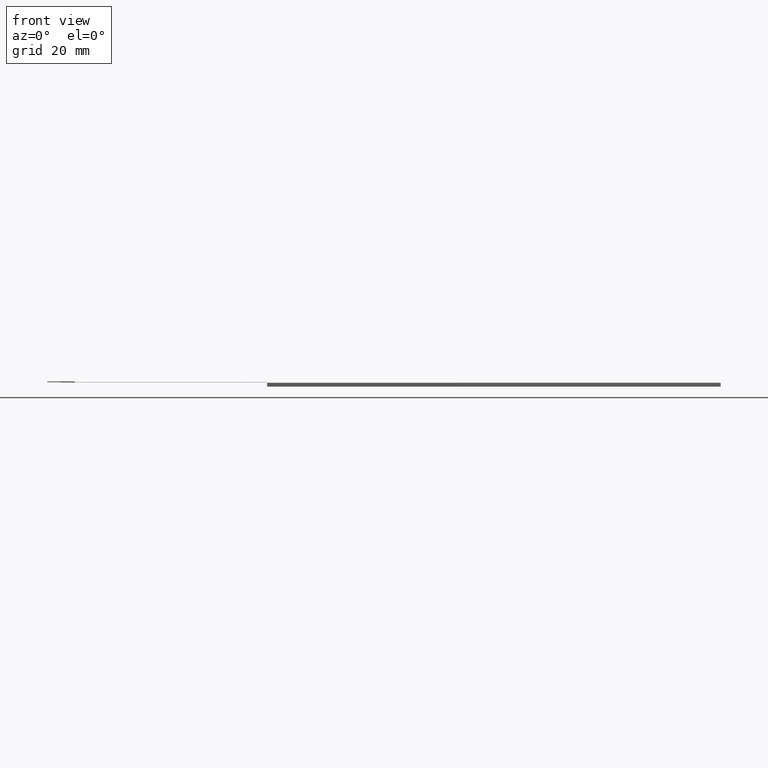
[diagram: clean part render]
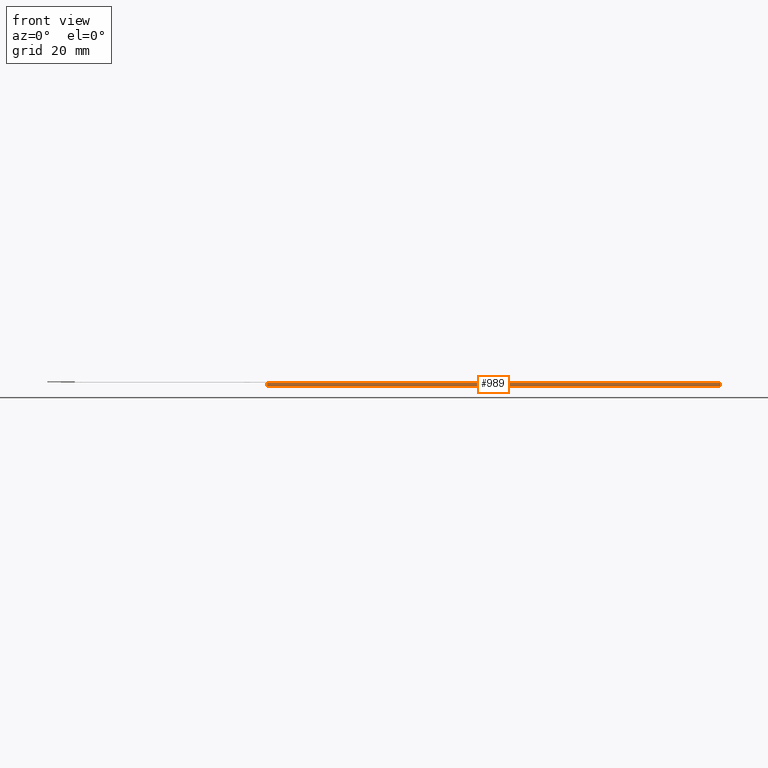
[diagram: same view with one face highlighted and labeled with its STEP entity id]
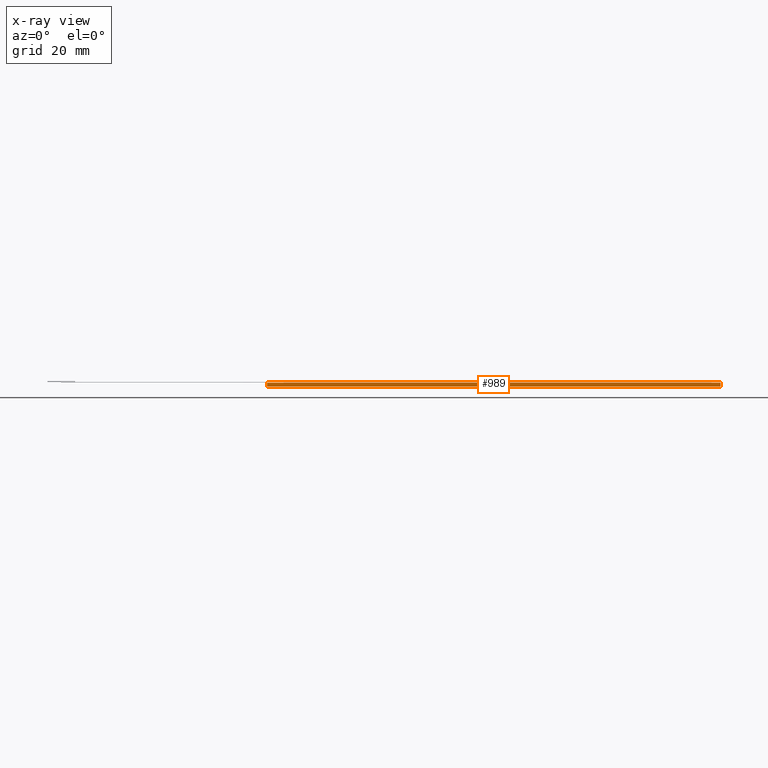
[diagram: x-ray of the same camera — body ghosted, the highlighted face saturated]
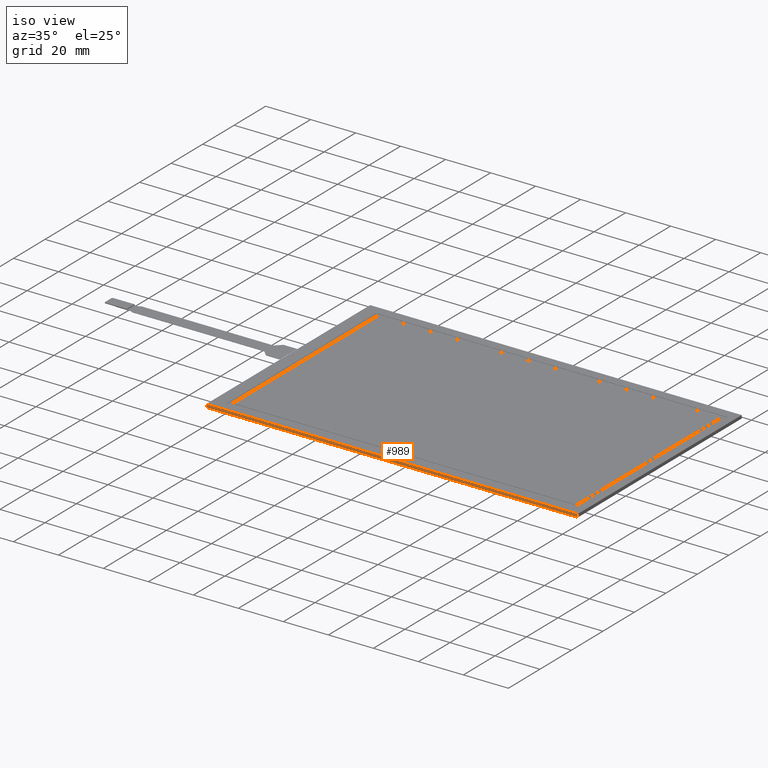
[diagram: same view with one face highlighted and labeled with its STEP entity id]
A machine part, front view. The second image highlights one B-rep face of the part: STEP entity #989.
The next image is the same camera in x-ray: the body ghosted, the highlighted face saturated — about 0% of this face is hidden behind the body in this view.
A second angle (iso view) of the same face is appended — the face is thin or edge-on in the first view.
In plain terms, the highlighted planar face has unit normal (0, -1, 0).
Its self-contained STEP definition (entity closure, byte-faithful):
#79=FACE_OUTER_BOUND('',#133,.T.);
#133=EDGE_LOOP('',(#708,#709,#710,#711));
#200=LINE('',#1431,#326);
#204=LINE('',#1438,#330);
#205=LINE('',#1441,#331);
#206=LINE('',#1442,#332);
#326=VECTOR('',#1166,10.);
#330=VECTOR('',#1172,10.);
#331=VECTOR('',#1175,10.);
#332=VECTOR('',#1176,10.);
#444=VERTEX_POINT('',#1428);
#445=VERTEX_POINT('',#1430);
#447=VERTEX_POINT('',#1436);
#448=VERTEX_POINT('',#1440);
#544=EDGE_CURVE('',#444,#445,#200,.T.);
#548=EDGE_CURVE('',#444,#447,#204,.T.);
#549=EDGE_CURVE('',#448,#447,#205,.T.);
#550=EDGE_CURVE('',#445,#448,#206,.T.);
#708=ORIENTED_EDGE('',*,*,#544,.F.);
#709=ORIENTED_EDGE('',*,*,#548,.T.);
#710=ORIENTED_EDGE('',*,*,#549,.F.);
#711=ORIENTED_EDGE('',*,*,#550,.F.);
#943=PLANE('',#1065);
#989=ADVANCED_FACE('',(#79),#943,.T.);
#1065=AXIS2_PLACEMENT_3D('',#1439,#1173,#1174);
#1166=DIRECTION('',(1.,5.37801041295868E-17,0.));
#1172=DIRECTION('',(0.,0.,-1.));
#1173=DIRECTION('center_axis',(5.37801041295868E-17,-1.,0.));
#1174=DIRECTION('ref_axis',(-1.,-5.37801041295868E-17,0.));
#1175=DIRECTION('',(-1.,-5.37801041295868E-17,0.));
#1176=DIRECTION('',(0.,0.,-1.));
#1428=CARTESIAN_POINT('',(-83.9,-52.,0.));
#1430=CARTESIAN_POINT('',(81.25,-52.,0.));
#1431=CARTESIAN_POINT('',(-83.9,-52.,0.));
#1436=CARTESIAN_POINT('',(-83.9,-52.,-1.4));
#1438=CARTESIAN_POINT('',(-83.9,-52.,0.));
#1439=CARTESIAN_POINT('Origin',(81.25,-52.,0.));
#1440=CARTESIAN_POINT('',(81.25,-52.,-1.4));
#1441=CARTESIAN_POINT('',(-83.9,-52.,-1.4));
#1442=CARTESIAN_POINT('',(81.25,-52.,0.));